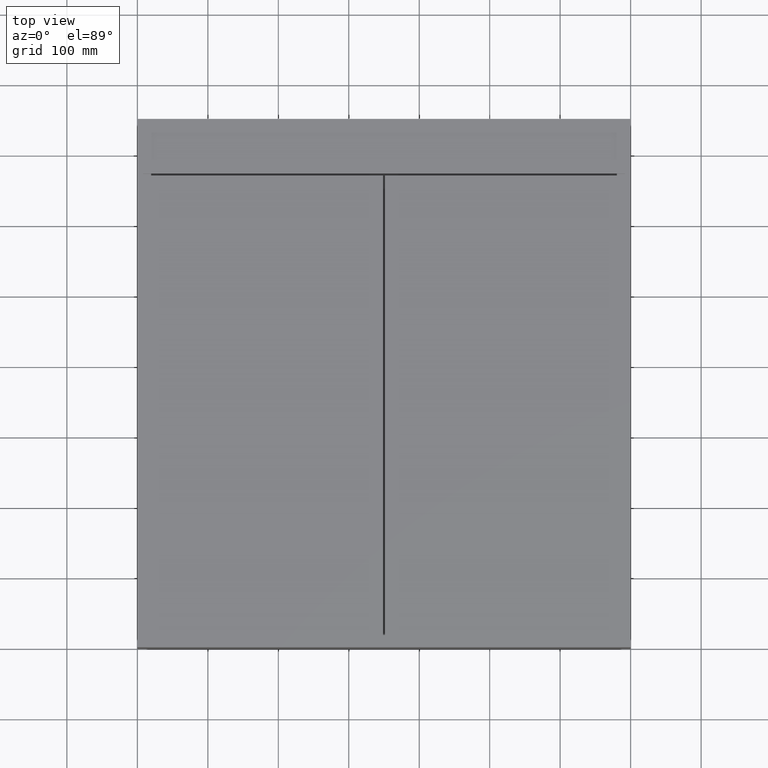
[diagram: clean part render]
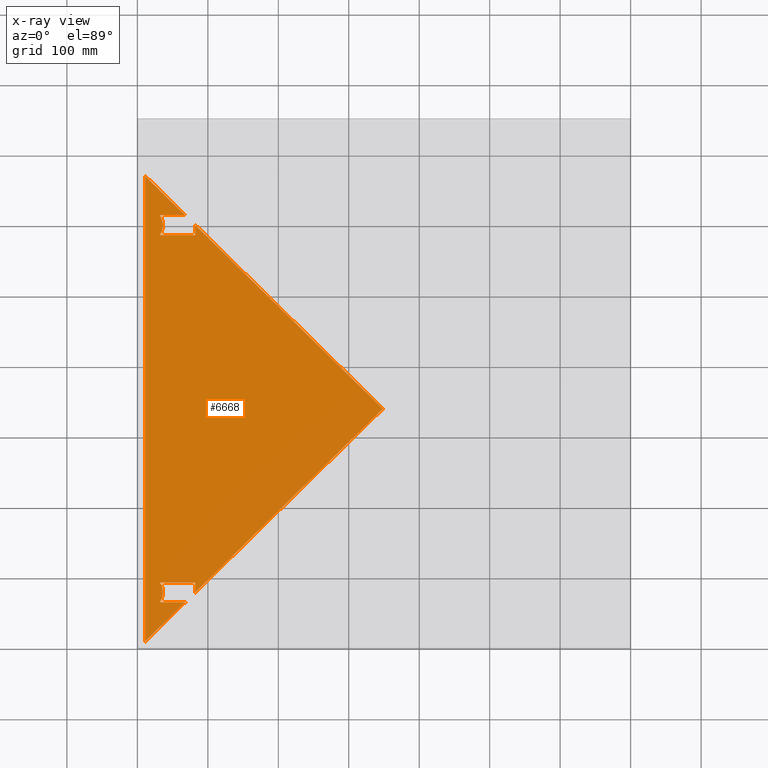
[diagram: x-ray — body ghosted, one internal face saturated and labeled with its STEP entity id]
A machine part, top view, then the same camera in x-ray: the body is ghosted and one INTERNAL B-rep face — a face not visible from any outside direction — is saturated and labeled: STEP entity #6668.
In plain terms, the highlighted planar face has unit normal (-0, 0, -1).
Its self-contained STEP definition (entity closure, byte-faithful):
#6 = DIRECTION ( 'NONE',  ( 0.0000000000000000000, 0.0000000000000000000, -1.000000000000000000 ) ) ;
#29 = CARTESIAN_POINT ( 'NONE',  ( 1.385620762379996540, -1.414968466116994783, -6.000100000000078815 ) ) ;
#58 = LINE ( 'NONE', #3665, #4554 ) ;
#85 = VERTEX_POINT ( 'NONE', #5478 ) ;
#172 = DIRECTION ( 'NONE',  ( -1.000000000000000000, 2.220446049250313081E-15, 5.877471754111437540E-39 ) ) ;
#275 = EDGE_CURVE ( 'NONE', #10727, #10604, #11249, .T. ) ;
#340 = ORIENTED_EDGE ( 'NONE', *, *, #5634, .F. ) ;
#423 = CARTESIAN_POINT ( 'NONE',  ( 36.28768482279199503, 598.9999000000001388, -6.000100000000078815 ) ) ;
#429 = ORIENTED_EDGE ( 'NONE', *, *, #5375, .T. ) ;
#508 = EDGE_CURVE ( 'NONE', #10517, #2105, #58, .T. ) ;
#589 = DIRECTION ( 'NONE',  ( -1.000000000000000000, -3.922032968682395325E-46, 0.0000000000000000000 ) ) ;
#728 = ORIENTED_EDGE ( 'NONE', *, *, #7254, .T. ) ;
#878 = CARTESIAN_POINT ( 'NONE',  ( 82.00000000000004263, 599.4725031111111093, -6.000100000000078815 ) ) ;
#880 = DIRECTION ( 'NONE',  ( 0.0000000000000000000, 0.0000000000000000000, -1.000000000000000000 ) ) ;
#922 = CARTESIAN_POINT ( 'NONE',  ( 0.0000000000000000000, 612.9999000000001388, -6.000100000000078815 ) ) ;
#1010 = CARTESIAN_POINT ( 'NONE',  ( 31.99999999999994671, 64.00000000000000000, -6.000100000000078815 ) ) ;
#1080 = VECTOR ( 'NONE', #1776, 1000.000000000000000 ) ;
#1104 = VERTEX_POINT ( 'NONE', #423 ) ;
#1126 = EDGE_CURVE ( 'NONE', #11684, #4913, #7658, .T. ) ;
#1484 = PLANE ( 'NONE',  #10903 ) ;
#1491 = VERTEX_POINT ( 'NONE', #1010 ) ;
#1618 = AXIS2_PLACEMENT_3D ( 'NONE', #7768, #11359, #3251 ) ;
#1750 = VECTOR ( 'NONE', #3151, 999.9999999999998863 ) ;
#1776 = DIRECTION ( 'NONE',  ( -1.000000000000000000, -5.551115123125782702E-16, 5.877471754111437540E-39 ) ) ;
#1784 = ORIENTED_EDGE ( 'NONE', *, *, #2732, .F. ) ;
#1886 = ORIENTED_EDGE ( 'NONE', *, *, #1927, .T. ) ;
#1927 = EDGE_CURVE ( 'NONE', #1104, #10270, #11021, .T. ) ;
#1948 = CARTESIAN_POINT ( 'NONE',  ( 339.8112362767284935, 347.0085010403054753, -6.000100000000078815 ) ) ;
#2105 = VERTEX_POINT ( 'NONE', #8737 ) ;
#2118 = EDGE_CURVE ( 'NONE', #10491, #4504, #10559, .T. ) ;
#2318 = CARTESIAN_POINT ( 'NONE',  ( 81.99999999999992895, -5.551115123125782702E-14, -6.000100000000078815 ) ) ;
#2445 = CARTESIAN_POINT ( 'NONE',  ( 82.00000000000001421, 0.0000000000000000000, -6.000100000000078815 ) ) ;
#2644 = CARTESIAN_POINT ( 'NONE',  ( 68.18609034585320217, 612.9999000000001388, -6.000100000000078815 ) ) ;
#2732 = EDGE_CURVE ( 'NONE', #3366, #10491, #10064, .T. ) ;
#2990 = CARTESIAN_POINT ( 'NONE',  ( 11.28768482279199326, 598.9999000000001388, -6.000100000000078815 ) ) ;
#3149 = CARTESIAN_POINT ( 'NONE',  ( 0.0000000000000000000, 92.00000000000008527, -6.000100000000078815 ) ) ;
#3151 = DIRECTION ( 'NONE',  ( -0.7144774082819730365, 0.6996585117431752820, 0.0000000000000000000 ) ) ;
#3251 = DIRECTION ( 'NONE',  ( -1.000000000000000000, 0.0000000000000000000, 0.0000000000000000000 ) ) ;
#3366 = VERTEX_POINT ( 'NONE', #7302 ) ;
#3599 = CARTESIAN_POINT ( 'NONE',  ( 11.00000000000012079, 0.0000000000000000000, -6.000100000000078815 ) ) ;
#3612 = DIRECTION ( 'NONE',  ( -1.000000000000000000, 0.0000000000000000000, 0.0000000000000000000 ) ) ;
#3637 = DIRECTION ( 'NONE',  ( 0.7144774082819729255, 0.6996585117431753931, -5.877471754111438845E-39 ) ) ;
#3651 = VECTOR ( 'NONE', #6078, 1000.000000000000000 ) ;
#3665 = CARTESIAN_POINT ( 'NONE',  ( 1.385620762379996540, -1.414968466116994783, -6.000100000000078815 ) ) ;
#3764 = ORIENTED_EDGE ( 'NONE', *, *, #1126, .F. ) ;
#3869 = EDGE_LOOP ( 'NONE', ( #6476, #429, #7081, #5481, #3940, #728, #3764, #11371, #6262, #1886, #340, #10470, #1784, #11011, #8608 ) ) ;
#3933 = CARTESIAN_POINT ( 'NONE',  ( 81.99999999999997158, 92.00000000000008527, -6.000100000000078815 ) ) ;
#3940 = ORIENTED_EDGE ( 'NONE', *, *, #508, .F. ) ;
#3961 = CARTESIAN_POINT ( 'NONE',  ( 32.00000000000000000, 584.9999000000002525, -6.000100000000078815 ) ) ;
#4211 = CARTESIAN_POINT ( 'NONE',  ( 31.99999999999997158, 92.00000000000008527, -6.000100000000078815 ) ) ;
#4249 = CIRCLE ( 'NONE', #10872, 25.00000000000000000 ) ;
#4361 = VECTOR ( 'NONE', #6774, 1000.000000000000000 ) ;
#4479 = DIRECTION ( 'NONE',  ( -1.000000000000000000, 0.0000000000000000000, 0.0000000000000000000 ) ) ;
#4504 = VERTEX_POINT ( 'NONE', #5258 ) ;
#4523 = DIRECTION ( 'NONE',  ( 1.000000000000000000, 3.922032968682395325E-46, 0.0000000000000000000 ) ) ;
#4554 = VECTOR ( 'NONE', #7290, 999.9999999999998863 ) ;
#4665 = LINE ( 'NONE', #8292, #9008 ) ;
#4899 = VECTOR ( 'NONE', #5956, 1000.000000000000000 ) ;
#4913 = VERTEX_POINT ( 'NONE', #11262 ) ;
#5040 = CIRCLE ( 'NONE', #11645, 24.99999999999999289 ) ;
#5107 = CARTESIAN_POINT ( 'NONE',  ( 0.0000000000000000000, 0.0000000000000000000, -6.000100000000078815 ) ) ;
#5258 = CARTESIAN_POINT ( 'NONE',  ( 82.00000000000001421, 584.9999000000001388, -6.000100000000078815 ) ) ;
#5375 = EDGE_CURVE ( 'NONE', #10727, #9414, #6740, .T. ) ;
#5478 = CARTESIAN_POINT ( 'NONE',  ( 81.99999999999997158, 77.52739688888877367, -6.000100000000078815 ) ) ;
#5481 = ORIENTED_EDGE ( 'NONE', *, *, #6800, .F. ) ;
#5494 = VECTOR ( 'NONE', #3637, 999.9999999999998863 ) ;
#5564 = VECTOR ( 'NONE', #5580, 999.9999999999998863 ) ;
#5580 = DIRECTION ( 'NONE',  ( -0.7144774082819730365, 0.6996585117431752820, 0.0000000000000000000 ) ) ;
#5634 = EDGE_CURVE ( 'NONE', #4504, #10270, #4665, .T. ) ;
#5718 = CARTESIAN_POINT ( 'NONE',  ( 32.00000000000002842, 612.9999000000001388, -6.000100000000078815 ) ) ;
#5936 = AXIS2_PLACEMENT_3D ( 'NONE', #2990, #6620, #10215 ) ;
#5956 = DIRECTION ( 'NONE',  ( -4.956352788505158337E-16, -1.000000000000000000, 0.0000000000000000000 ) ) ;
#5992 = EDGE_CURVE ( 'NONE', #9414, #1491, #5040, .T. ) ;
#6078 = DIRECTION ( 'NONE',  ( -3.922032968682395325E-46, -1.000000000000000000, 0.0000000000000000000 ) ) ;
#6208 = VECTOR ( 'NONE', #7218, 1000.000000000000000 ) ;
#6262 = ORIENTED_EDGE ( 'NONE', *, *, #11284, .T. ) ;
#6291 = LINE ( 'NONE', #9887, #1080 ) ;
#6330 = CARTESIAN_POINT ( 'NONE',  ( 11.00000000000012079, 8.000000000000007105, -6.000100000000078815 ) ) ;
#6476 = ORIENTED_EDGE ( 'NONE', *, *, #275, .F. ) ;
#6503 = VERTEX_POINT ( 'NONE', #5718 ) ;
#6620 = DIRECTION ( 'NONE',  ( 0.0000000000000000000, 0.0000000000000000000, -1.000000000000000000 ) ) ;
#6668 = ADVANCED_FACE ( 'NONE', ( #9597 ), #1484, .T. ) ;
#6740 = CIRCLE ( 'NONE', #1618, 24.99999999999999289 ) ;
#6774 = DIRECTION ( 'NONE',  ( 1.000000000000000000, 3.922032968682395325E-46, 0.0000000000000000000 ) ) ;
#6800 = EDGE_CURVE ( 'NONE', #2105, #1491, #6291, .T. ) ;
#7081 = ORIENTED_EDGE ( 'NONE', *, *, #5992, .T. ) ;
#7218 = DIRECTION ( 'NONE',  ( -1.443416121223685377E-16, 1.000000000000000000, 0.0000000000000000000 ) ) ;
#7254 = EDGE_CURVE ( 'NONE', #10517, #4913, #11703, .T. ) ;
#7290 = DIRECTION ( 'NONE',  ( 0.7144774082819729255, 0.6996585117431753931, -5.877471754111438845E-39 ) ) ;
#7302 = CARTESIAN_POINT ( 'NONE',  ( 348.5000000000000000, 338.4999499999998989, -6.000100000000078815 ) ) ;
#7658 = LINE ( 'NONE', #11251, #1750 ) ;
#7768 = CARTESIAN_POINT ( 'NONE',  ( 11.28768482279202168, 78.00000000000007105, -6.000100000000078815 ) ) ;
#8125 = CARTESIAN_POINT ( 'NONE',  ( 11.28768482279199326, 598.9999000000001388, -6.000100000000078815 ) ) ;
#8151 = LINE ( 'NONE', #29, #5494 ) ;
#8292 = CARTESIAN_POINT ( 'NONE',  ( 1.304512053934558935E-12, 584.9999000000003662, -6.000100000000078815 ) ) ;
#8560 = CARTESIAN_POINT ( 'NONE',  ( 36.28768482279201635, 78.00000000000007105, -6.000100000000078815 ) ) ;
#8608 = ORIENTED_EDGE ( 'NONE', *, *, #9462, .F. ) ;
#8720 = DIRECTION ( 'NONE',  ( -0.0000000000000000000, 0.0000000000000000000, -1.000000000000000000 ) ) ;
#8737 = CARTESIAN_POINT ( 'NONE',  ( 68.18609034585347217, 64.00000000000005684, -6.000100000000078815 ) ) ;
#8995 = CARTESIAN_POINT ( 'NONE',  ( 11.28768482279202168, 78.00000000000007105, -6.000100000000078815 ) ) ;
#9008 = VECTOR ( 'NONE', #172, 1000.000000000000000 ) ;
#9040 = LINE ( 'NONE', #922, #10576 ) ;
#9243 = EDGE_CURVE ( 'NONE', #6503, #11684, #9040, .T. ) ;
#9245 = EDGE_CURVE ( 'NONE', #85, #3366, #8151, .T. ) ;
#9414 = VERTEX_POINT ( 'NONE', #8560 ) ;
#9462 = EDGE_CURVE ( 'NONE', #10604, #85, #10431, .T. ) ;
#9597 = FACE_OUTER_BOUND ( 'NONE', #3869, .T. ) ;
#9887 = CARTESIAN_POINT ( 'NONE',  ( -2.775557561562891351E-14, 64.00000000000000000, -6.000100000000078815 ) ) ;
#10064 = LINE ( 'NONE', #1948, #5564 ) ;
#10215 = DIRECTION ( 'NONE',  ( -1.000000000000000000, 0.0000000000000000000, 0.0000000000000000000 ) ) ;
#10270 = VERTEX_POINT ( 'NONE', #3961 ) ;
#10431 = LINE ( 'NONE', #2318, #4899 ) ;
#10470 = ORIENTED_EDGE ( 'NONE', *, *, #2118, .F. ) ;
#10491 = VERTEX_POINT ( 'NONE', #878 ) ;
#10517 = VERTEX_POINT ( 'NONE', #6330 ) ;
#10559 = LINE ( 'NONE', #2445, #3651 ) ;
#10576 = VECTOR ( 'NONE', #4523, 1000.000000000000000 ) ;
#10604 = VERTEX_POINT ( 'NONE', #3933 ) ;
#10727 = VERTEX_POINT ( 'NONE', #4211 ) ;
#10872 = AXIS2_PLACEMENT_3D ( 'NONE', #8125, #6, #3612 ) ;
#10903 = AXIS2_PLACEMENT_3D ( 'NONE', #5107, #8720, #589 ) ;
#11011 = ORIENTED_EDGE ( 'NONE', *, *, #9245, .F. ) ;
#11021 = CIRCLE ( 'NONE', #5936, 25.00000000000000000 ) ;
#11249 = LINE ( 'NONE', #3149, #4361 ) ;
#11251 = CARTESIAN_POINT ( 'NONE',  ( 339.8112362767284935, 347.0085010403054753, -6.000100000000078815 ) ) ;
#11262 = CARTESIAN_POINT ( 'NONE',  ( 11.00000000000001066, 668.9999000000001388, -6.000100000000078815 ) ) ;
#11284 = EDGE_CURVE ( 'NONE', #6503, #1104, #4249, .T. ) ;
#11359 = DIRECTION ( 'NONE',  ( 0.0000000000000000000, 0.0000000000000000000, -1.000000000000000000 ) ) ;
#11371 = ORIENTED_EDGE ( 'NONE', *, *, #9243, .F. ) ;
#11645 = AXIS2_PLACEMENT_3D ( 'NONE', #8995, #880, #4479 ) ;
#11684 = VERTEX_POINT ( 'NONE', #2644 ) ;
#11703 = LINE ( 'NONE', #3599, #6208 ) ;